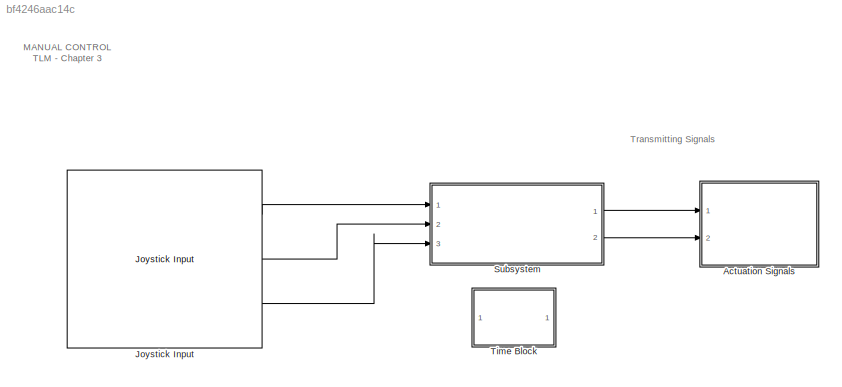
MODEL slx_bf4246aac14c
KIND model
CONFIG AbsTol = auto
CONFIG EnableMultiTasking = off
CONFIG FixedStep = auto
CONFIG MaxStep = auto
CONFIG MinStep = auto
CONFIG RelTol = 1e-3
CONFIG SampleTimeConstraint = Unconstrained
CONFIG Solver = FixedStepAuto
CONFIG SolverName = FixedStepAuto
CONFIG StartTime = 0.0
CONFIG StopTime = inf
WORKSPACE source: mxarray member
WORKSPACE SL_ROS_VariableLengthArrays_MaxSizes: object (value not decoded)
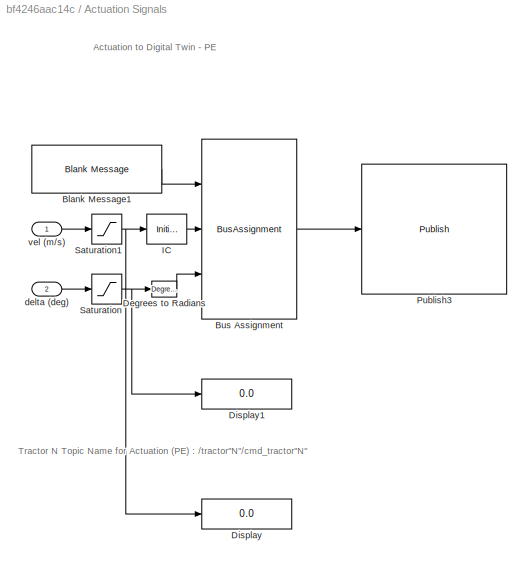
BLOCK [SubSystem] Actuation Signals
  Ports = [2]
  RequestExecContextInheritance = off
BLOCK [Reference] Actuation Signals/Blank Message1  REF=robotlib/Blank Message
  Ports = [0, 1]
  SourceBlock = robotlib/Blank Message
  SourceProductBaseCode = RR
  SourceType = ROS Blank Message
BLOCK [BusAssignment] Actuation Signals/Bus Assignment
  AssignedSignals = Linear.X,Angular.Z
  DialogController = Simulink.DDGSource_BusAssignment
  Ports = [3, 1]
BLOCK [Reference] Actuation Signals/Degrees to Radians  REF=simulink_extras/Transformations/Degrees to
Radians
  Ports = [1, 1]
  SourceBlock = simulink_extras/Transformations/Degrees to\nRadians
  SourceProductBaseCode = SL
  SourceType = DegreesToRadians
BLOCK [Display] Actuation Signals/Display
  Decimation = 1
  Ports = [1]
BLOCK [Display] Actuation Signals/Display1
  Decimation = 1
  Ports = [1]
BLOCK [InitialCondition] Actuation Signals/IC
  Value = 0
BLOCK [Reference] Actuation Signals/Publish3  REF=robotlib/Publish
  Ports = [1]
  SourceBlock = robotlib/Publish
  SourceProductBaseCode = RR
  SourceType = ROS Publish
BLOCK [Saturate] Actuation Signals/Saturation
  LowerLimit = -25
  UpperLimit = 25
BLOCK [Saturate] Actuation Signals/Saturation1
  LowerLimit = -0.28
  UpperLimit = 0.28
BLOCK [Inport] Actuation Signals/delta (deg)
  Port = 2
BLOCK [Inport] Actuation Signals/vel (m//s)
BLOCK [Reference] Joystick Input  REF=vrlib/Joystick Input
  Ports = [0, 3]
  SourceBlock = vrlib/Joystick Input
  SourceProductBaseCode = SL
  SourceType = Joystick Input
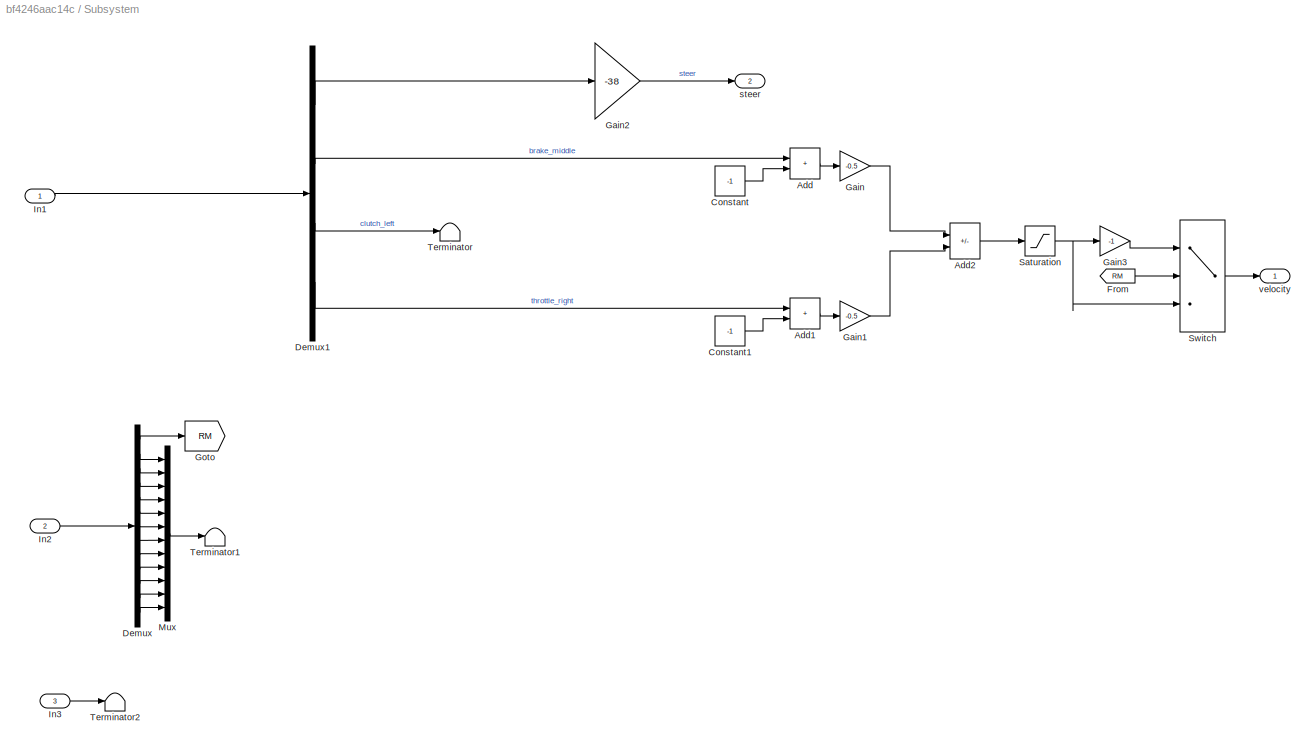
BLOCK [SubSystem] Subsystem
  Ports = [3, 2]
  RequestExecContextInheritance = off
BLOCK [Sum] Subsystem/Add
  IconShape = rectangular
  Ports = [2, 1]
BLOCK [Sum] Subsystem/Add1
  IconShape = rectangular
  Ports = [2, 1]
BLOCK [Sum] Subsystem/Add2
  IconShape = rectangular
  Inputs = -+
  Ports = [2, 1]
BLOCK [Constant] Subsystem/Constant
  Value = -1
BLOCK [Constant] Subsystem/Constant1
  Value = -1
BLOCK [Demux] Subsystem/Demux
  Outputs = 13
  Ports = [1, 13]
BLOCK [Demux] Subsystem/Demux1
  Ports = [1, 4]
BLOCK [From] Subsystem/From
  GotoTag = RM
BLOCK [Gain] Subsystem/Gain
  Gain = -0.5
BLOCK [Gain] Subsystem/Gain1
  Gain = -0.5
BLOCK [Gain] Subsystem/Gain2
  Gain = -38
BLOCK [Gain] Subsystem/Gain3
  Gain = -1
BLOCK [Goto] Subsystem/Goto
  GotoTag = RM
BLOCK [Inport] Subsystem/In1
BLOCK [Inport] Subsystem/In2
  Port = 2
BLOCK [Inport] Subsystem/In3
  Port = 3
BLOCK [Mux] Subsystem/Mux
  DisplayOption = bar
  Inputs = 12
  Ports = [12, 1]
BLOCK [Saturate] Subsystem/Saturation
  LowerLimit = 0
  UpperLimit = 5
BLOCK [Switch] Subsystem/Switch
  InputSameDT = off
  SaturateOnIntegerOverflow = off
  Threshold = 1
BLOCK [Terminator] Subsystem/Terminator
BLOCK [Terminator] Subsystem/Terminator1
BLOCK [Terminator] Subsystem/Terminator2
BLOCK [Outport] Subsystem/steer
  Port = 2
BLOCK [Outport] Subsystem/velocity
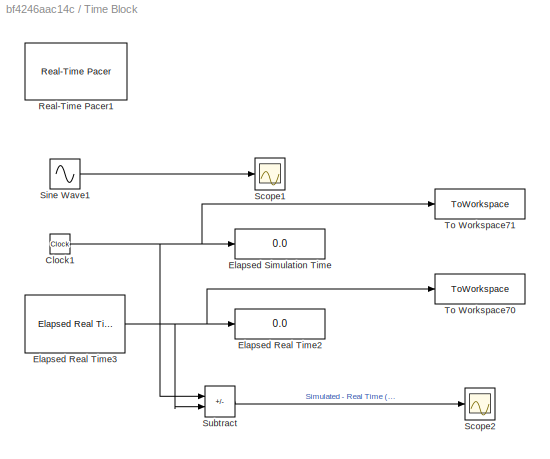
BLOCK [SubSystem] Time Block
  Ports = []
  RequestExecContextInheritance = off
BLOCK [Clock] Time Block/Clock1
BLOCK [Display] Time Block/Elapsed Real Time2
  Decimation = 2
  Ports = [1]
BLOCK [Reference] Time Block/Elapsed Real Time3  REF=realtime_pacer_lib/Elapsed Real Time
  Ports = [0, 1]
  SourceBlock = realtime_pacer_lib/Elapsed Real Time
  SourceType = RealTime_Elapsed
BLOCK [Display] Time Block/Elapsed Simulation Time
  Decimation = 2
  Ports = [1]
BLOCK [Reference] Time Block/Real-Time Pacer1  REF=realtime_pacer_lib/Real-Time Pacer
  Ports = []
  SourceBlock = realtime_pacer_lib/Real-Time Pacer
  SourceType = RealTime_Pacer
BLOCK [Scope] Time Block/Scope1
  Floating = off
  NumInputPorts = 1
  Ports = [1]
  ScopeSpecificationString = Simulink.scopes.TimeScopeBlockCfg('CurrentConfiguration', extmgr.ConfigurationSet(extmgr.Configuration('Core','General UI',true),extmgr.Configuration('Core','Source UI',true),extmgr.Configuration('Sources','WiredSimulink',true,'DataLoggingVariableName','ScopeData1','DataLoggingSaveFormat','StructureWithTime','DataLoggingLimitDataPoints',true,'DataLoggingDecimation','1','DataLoggingDecimateData',tr...<+911ch>
BLOCK [Scope] Time Block/Scope2
  Floating = off
  NumInputPorts = 1
  Ports = [1]
  ScopeSpecificationString = Simulink.scopes.TimeScopeBlockCfg('CurrentConfiguration', extmgr.ConfigurationSet(extmgr.Configuration('Core','General UI',true),extmgr.Configuration('Core','Source UI',true),extmgr.Configuration('Sources','WiredSimulink',true,'DataLoggingSaveFormat','StructureWithTime','DataLoggingLimitDataPoints',true,'DataLoggingDecimation','1','DataLoggingDecimateData',true,'DataLoggingVariableName','ScopeData...<+1641ch>
BLOCK [Sin] Time Block/Sine Wave1
  Frequency = 2*pi*0.5
  Ports = [0, 1]
  SampleTime = 0
BLOCK [Sum] Time Block/Subtract
  IconShape = rectangular
  Inputs = +-
  Ports = [2, 1]
BLOCK [ToWorkspace] Time Block/To Workspace70
  FixptAsFi = on
  MaxDataPoints = inf
  Ports = [1]
  SampleTime = -1
  VariableName = time_real
BLOCK [ToWorkspace] Time Block/To Workspace71
  FixptAsFi = on
  MaxDataPoints = inf
  Ports = [1]
  SampleTime = -1
  VariableName = time
ANNOTATION (root): MANUAL CONTROL TLM - Chapter 3
ANNOTATION (root): Transmitting Signals
ANNOTATION Actuation Signals: Actuation to Digital Twin - PE
ANNOTATION Actuation Signals: Tractor N Topic Name for Actuation (PE) : /tractor"N"/cmd_tractor"N"
LINE Actuation Signals/Blank Message1:1 -> Actuation Signals/Bus Assignment:1
LINE Actuation Signals/Bus Assignment:1 -> Actuation Signals/Publish3:1
LINE Actuation Signals/Degrees to Radians:1 -> Actuation Signals/Bus Assignment:3
LINE Actuation Signals/IC:1 -> Actuation Signals/Bus Assignment:2
NET Actuation Signals/Saturation1:1 -> Actuation Signals/Display:1, Actuation Signals/IC:1
NET Actuation Signals/Saturation:1 -> Actuation Signals/Degrees to Radians:1, Actuation Signals/Display1:1
LINE Actuation Signals/delta (deg):1 -> Actuation Signals/Saturation:1
LINE Actuation Signals/vel (m//s):1 -> Actuation Signals/Saturation1:1
LINE Joystick Input:1 -> Subsystem:1
LINE Joystick Input:2 -> Subsystem:2
LINE Joystick Input:3 -> Subsystem:3
LINE Subsystem/Add1:1 -> Subsystem/Gain1:1
LINE Subsystem/Add2:1 -> Subsystem/Saturation:1
LINE Subsystem/Add:1 -> Subsystem/Gain:1
LINE Subsystem/Constant1:1 -> Subsystem/Add1:2
LINE Subsystem/Constant:1 -> Subsystem/Add:2
LINE Subsystem/Demux1:1 -> Subsystem/Gain2:1
LINE Subsystem/Demux1:2 -> Subsystem/Add:1
LINE Subsystem/Demux1:3 -> Subsystem/Terminator:1
LINE Subsystem/Demux1:4 -> Subsystem/Add1:1
LINE Subsystem/Demux:1 -> Subsystem/Goto:1
LINE Subsystem/Demux:10 -> Subsystem/Mux:9
LINE Subsystem/Demux:11 -> Subsystem/Mux:10
LINE Subsystem/Demux:12 -> Subsystem/Mux:11
LINE Subsystem/Demux:13 -> Subsystem/Mux:12
LINE Subsystem/Demux:2 -> Subsystem/Mux:1
LINE Subsystem/Demux:3 -> Subsystem/Mux:2
LINE Subsystem/Demux:4 -> Subsystem/Mux:3
LINE Subsystem/Demux:5 -> Subsystem/Mux:4
LINE Subsystem/Demux:6 -> Subsystem/Mux:5
LINE Subsystem/Demux:7 -> Subsystem/Mux:6
LINE Subsystem/Demux:8 -> Subsystem/Mux:7
LINE Subsystem/Demux:9 -> Subsystem/Mux:8
LINE Subsystem/From:1 -> Subsystem/Switch:2
LINE Subsystem/Gain1:1 -> Subsystem/Add2:2
LINE Subsystem/Gain2:1 -> Subsystem/steer:1
LINE Subsystem/Gain3:1 -> Subsystem/Switch:1
LINE Subsystem/Gain:1 -> Subsystem/Add2:1
LINE Subsystem/In1:1 -> Subsystem/Demux1:1
LINE Subsystem/In2:1 -> Subsystem/Demux:1
LINE Subsystem/In3:1 -> Subsystem/Terminator2:1
LINE Subsystem/Mux:1 -> Subsystem/Terminator1:1
NET Subsystem/Saturation:1 -> Subsystem/Gain3:1, Subsystem/Switch:3
LINE Subsystem/Switch:1 -> Subsystem/velocity:1
LINE Subsystem:1 -> Actuation Signals:1
LINE Subsystem:2 -> Actuation Signals:2
NET Time Block/Clock1:1 -> Time Block/Elapsed Simulation Time:1, Time Block/Subtract:1, Time Block/To Workspace71:1
NET Time Block/Elapsed Real Time3:1 -> Time Block/Elapsed Real Time2:1, Time Block/Subtract:2, Time Block/To Workspace70:1
LINE Time Block/Sine Wave1:1 -> Time Block/Scope1:1
LINE Time Block/Subtract:1 -> Time Block/Scope2:1
note: NET lines group one-source signal fan-out (src -> all destinations, sorted); 1:1 wires keep LINE
